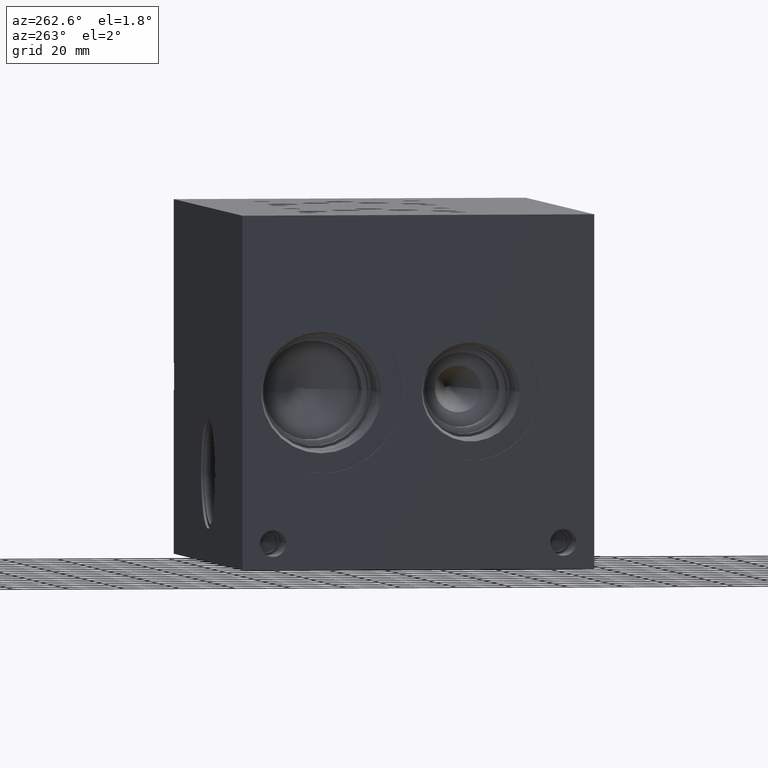
[diagram: clean part render]
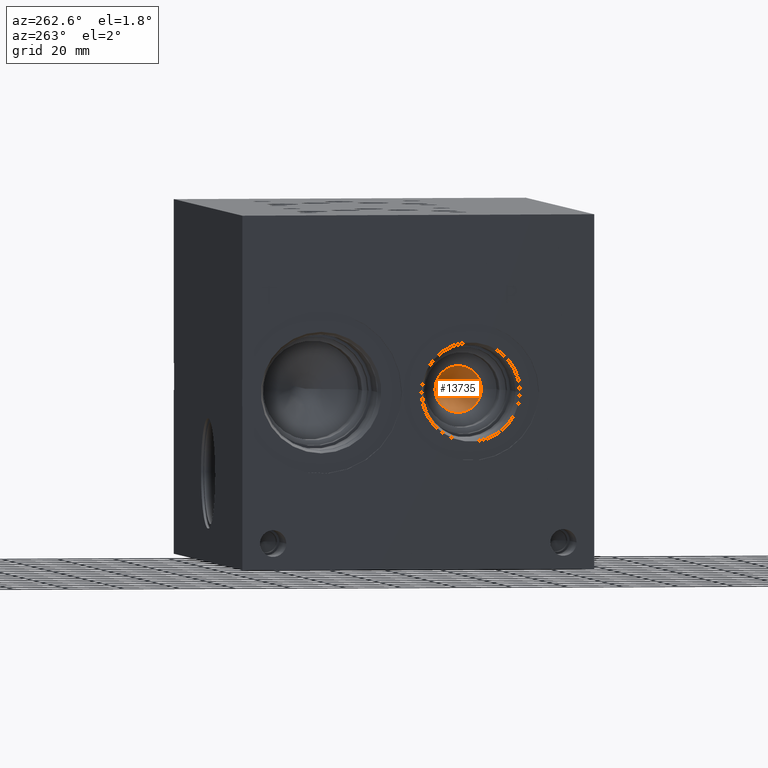
[diagram: same view with one face highlighted and labeled with its STEP entity id]
A machine part, auxiliary view. The second image highlights one B-rep face of the part: STEP entity #13735.
In plain terms, the highlighted conical surface has half-angle 15 deg.
Its self-contained STEP definition (entity closure, byte-faithful):
#68=CONICAL_SURFACE('',#14546,8.8773,0.261799387799149);
#423=CIRCLE('',#14522,8.37465001116991);
#1829=FACE_OUTER_BOUND('',#2627,.T.);
#2627=EDGE_LOOP('',(#11932,#11933,#11934));
#3880=LINE('',#23731,#5100);
#5100=VECTOR('',#17337,8.8773);
#6375=VERTEX_POINT('',#23682);
#6389=VERTEX_POINT('',#23730);
#8249=EDGE_CURVE('',#6375,#6375,#423,.T.);
#8272=EDGE_CURVE('',#6375,#6389,#3880,.T.);
#11932=ORIENTED_EDGE('',*,*,#8249,.T.);
#11933=ORIENTED_EDGE('',*,*,#8272,.T.);
#11934=ORIENTED_EDGE('',*,*,#8272,.F.);
#13735=ADVANCED_FACE('',(#1829),#68,.F.);
#14522=AXIS2_PLACEMENT_3D('',#23684,#17279,#17280);
#14546=AXIS2_PLACEMENT_3D('',#23729,#17335,#17336);
#17279=DIRECTION('center_axis',(-1.,0.,0.));
#17280=DIRECTION('ref_axis',(0.,1.,0.));
#17335=DIRECTION('center_axis',(-1.,0.,0.));
#17336=DIRECTION('ref_axis',(0.,1.,0.));
#17337=DIRECTION('',(0.965925826289068,0.258819045102521,-3.16961915143176E-17));
#23682=CARTESIAN_POINT('',(35.801379930769,36.0753499888301,63.5));
#23684=CARTESIAN_POINT('Origin',(35.801379930769,44.45,63.5));
#23729=CARTESIAN_POINT('Origin',(33.9254646340312,44.45,63.5));
#23730=CARTESIAN_POINT('',(67.0559992680624,44.45,63.5));
#23731=CARTESIAN_POINT('',(33.9254646340312,35.5727,63.5));